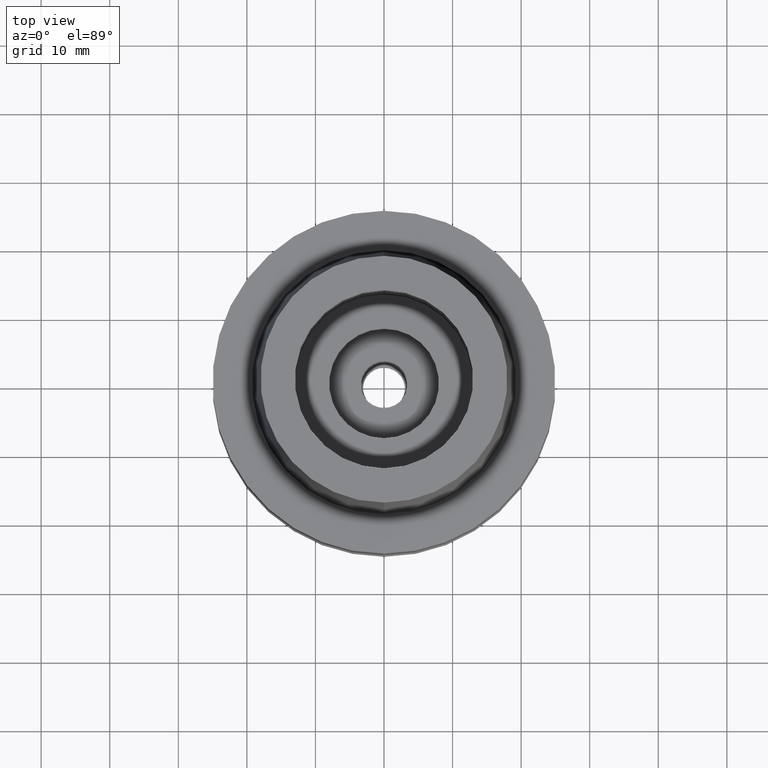
[diagram: clean part render]
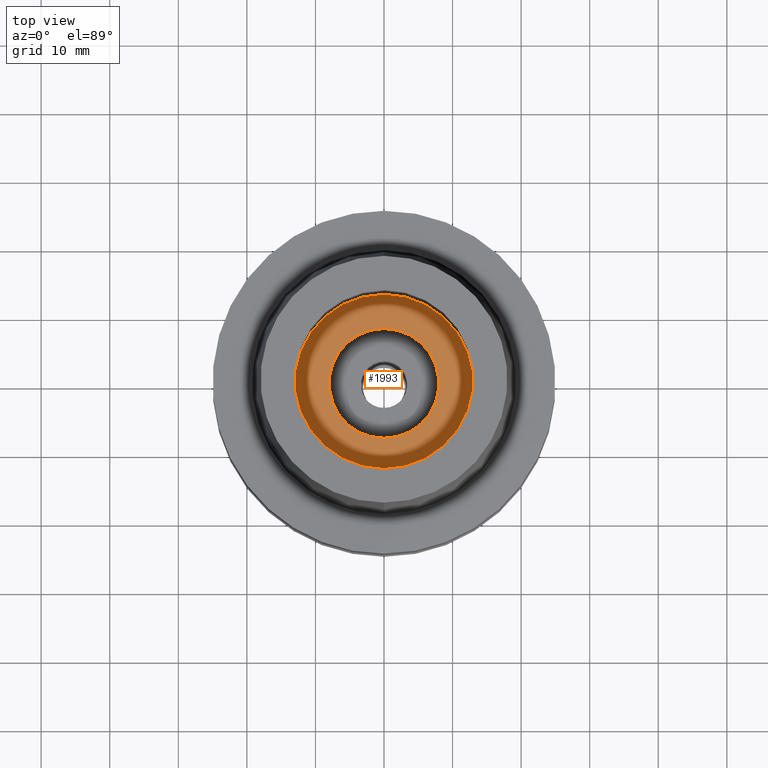
[diagram: same view with one face highlighted and labeled with its STEP entity id]
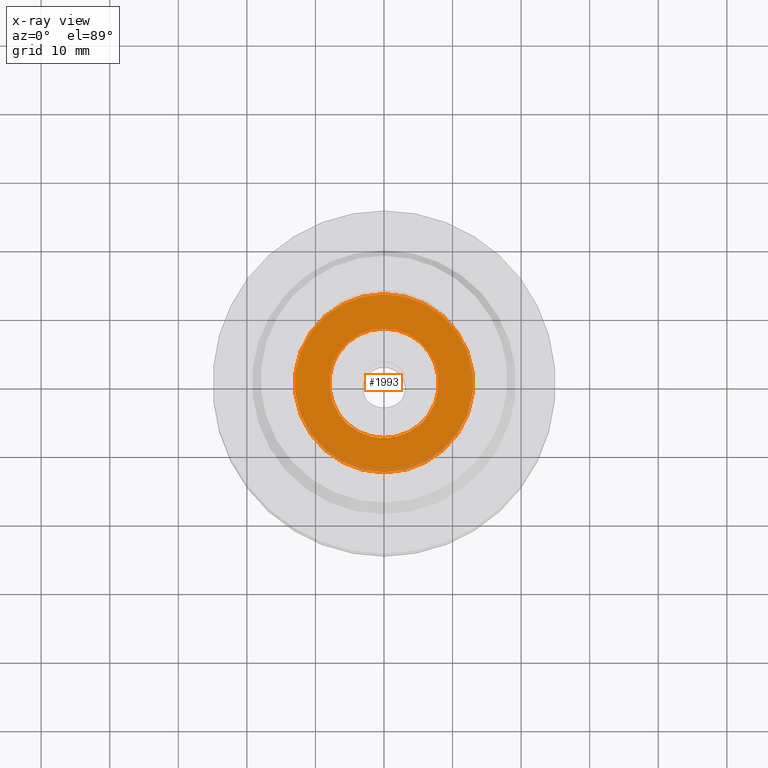
[diagram: x-ray of the same camera — body ghosted, the highlighted face saturated]
A machine part, top view. The second image highlights one B-rep face of the part: STEP entity #1993.
The next image is the same camera in x-ray: the body ghosted, the highlighted face saturated — about 5% of this face is hidden behind the body in this view.
In plain terms, the highlighted planar face has unit normal (0, 0, 1).
Its self-contained STEP definition (entity closure, byte-faithful):
#108 = CARTESIAN_POINT ( 'NONE',  ( 0.0000000000000000000, -13.00000000000000000, -9.950000000000001066 ) ) ;
#137 = DIRECTION ( 'NONE',  ( 0.0000000000000000000, 0.0000000000000000000, 1.000000000000000000 ) ) ;
#139 = AXIS2_PLACEMENT_3D ( 'NONE', #885, #724, #1133 ) ;
#152 = EDGE_CURVE ( 'NONE', #948, #1148, #2140, .T. ) ;
#189 = CARTESIAN_POINT ( 'NONE',  ( 0.0000000000000000000, 8.000000000000000000, -9.950000000000001066 ) ) ;
#211 = CARTESIAN_POINT ( 'NONE',  ( 0.0000000000000000000, 13.00000000000000000, -9.950000000000001066 ) ) ;
#235 = PLANE ( 'NONE',  #2489 ) ;
#419 = CARTESIAN_POINT ( 'NONE',  ( 0.0000000000000000000, 0.0000000000000000000, -9.950000000000001066 ) ) ;
#458 = DIRECTION ( 'NONE',  ( 0.0000000000000000000, 0.0000000000000000000, -1.000000000000000000 ) ) ;
#461 = DIRECTION ( 'NONE',  ( 1.000000000000000000, 0.0000000000000000000, 0.0000000000000000000 ) ) ;
#481 = ORIENTED_EDGE ( 'NONE', *, *, #926, .F. ) ;
#499 = AXIS2_PLACEMENT_3D ( 'NONE', #419, #458, #1464 ) ;
#507 = ORIENTED_EDGE ( 'NONE', *, *, #547, .F. ) ;
#547 = EDGE_CURVE ( 'NONE', #1148, #948, #834, .T. ) ;
#724 = DIRECTION ( 'NONE',  ( 0.0000000000000000000, 0.0000000000000000000, 1.000000000000000000 ) ) ;
#834 = CIRCLE ( 'NONE', #139, 8.000000000000000000 ) ;
#885 = CARTESIAN_POINT ( 'NONE',  ( 0.0000000000000000000, 0.0000000000000000000, -9.950000000000001066 ) ) ;
#926 = EDGE_CURVE ( 'NONE', #2309, #1063, #2188, .T. ) ;
#948 = VERTEX_POINT ( 'NONE', #2176 ) ;
#1063 = VERTEX_POINT ( 'NONE', #211 ) ;
#1107 = CARTESIAN_POINT ( 'NONE',  ( 0.0000000000000000000, 0.0000000000000000000, -9.950000000000001066 ) ) ;
#1133 = DIRECTION ( 'NONE',  ( 0.0000000000000000000, 1.000000000000000000, 0.0000000000000000000 ) ) ;
#1144 = DIRECTION ( 'NONE',  ( 0.0000000000000000000, 0.0000000000000000000, -1.000000000000000000 ) ) ;
#1148 = VERTEX_POINT ( 'NONE', #189 ) ;
#1240 = AXIS2_PLACEMENT_3D ( 'NONE', #1582, #1144, #2442 ) ;
#1289 = EDGE_LOOP ( 'NONE', ( #1410, #481 ) ) ;
#1410 = ORIENTED_EDGE ( 'NONE', *, *, #2690, .F. ) ;
#1464 = DIRECTION ( 'NONE',  ( 0.0000000000000000000, 1.000000000000000000, 0.0000000000000000000 ) ) ;
#1507 = DIRECTION ( 'NONE',  ( 0.0000000000000000000, 0.0000000000000000000, 1.000000000000000000 ) ) ;
#1582 = CARTESIAN_POINT ( 'NONE',  ( 0.0000000000000000000, 0.0000000000000000000, -9.950000000000001066 ) ) ;
#1644 = CARTESIAN_POINT ( 'NONE',  ( 0.0000000000000000000, 0.0000000000000000000, -9.950000000000001066 ) ) ;
#1652 = ORIENTED_EDGE ( 'NONE', *, *, #152, .F. ) ;
#1696 = FACE_BOUND ( 'NONE', #2275, .T. ) ;
#1946 = CIRCLE ( 'NONE', #499, 13.00000000000000000 ) ;
#1993 = ADVANCED_FACE ( 'NONE', ( #2538, #1696 ), #235, .T. ) ;
#2140 = CIRCLE ( 'NONE', #2626, 8.000000000000000000 ) ;
#2176 = CARTESIAN_POINT ( 'NONE',  ( 0.0000000000000000000, -8.000000000000000000, -9.950000000000001066 ) ) ;
#2188 = CIRCLE ( 'NONE', #1240, 13.00000000000000000 ) ;
#2275 = EDGE_LOOP ( 'NONE', ( #507, #1652 ) ) ;
#2309 = VERTEX_POINT ( 'NONE', #108 ) ;
#2442 = DIRECTION ( 'NONE',  ( 0.0000000000000000000, -1.000000000000000000, 0.0000000000000000000 ) ) ;
#2489 = AXIS2_PLACEMENT_3D ( 'NONE', #1107, #1507, #461 ) ;
#2538 = FACE_OUTER_BOUND ( 'NONE', #1289, .T. ) ;
#2619 = DIRECTION ( 'NONE',  ( 0.0000000000000000000, -1.000000000000000000, 0.0000000000000000000 ) ) ;
#2626 = AXIS2_PLACEMENT_3D ( 'NONE', #1644, #137, #2619 ) ;
#2690 = EDGE_CURVE ( 'NONE', #1063, #2309, #1946, .T. ) ;